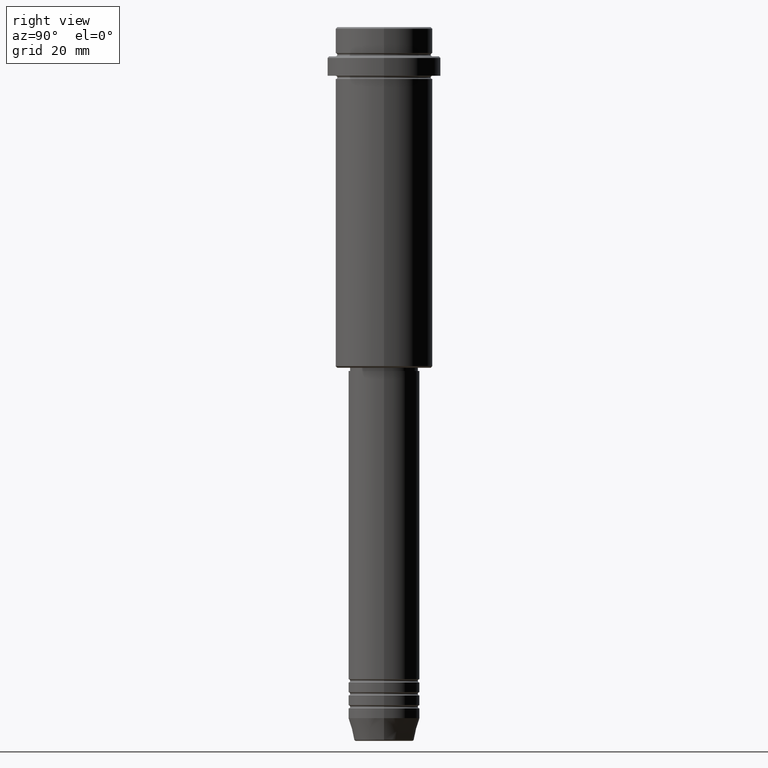
[diagram: clean part render]
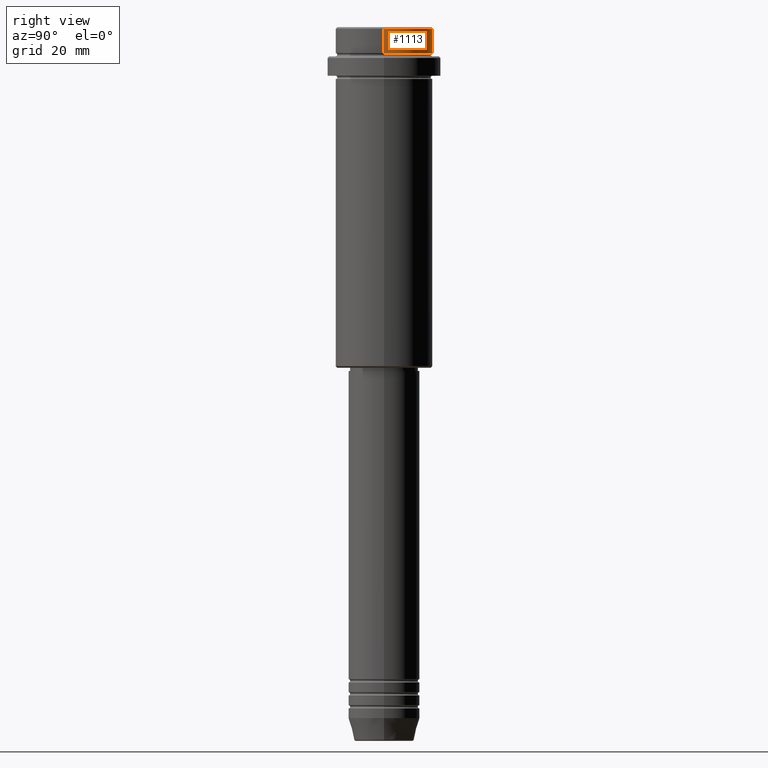
[diagram: same view with one face highlighted and labeled with its STEP entity id]
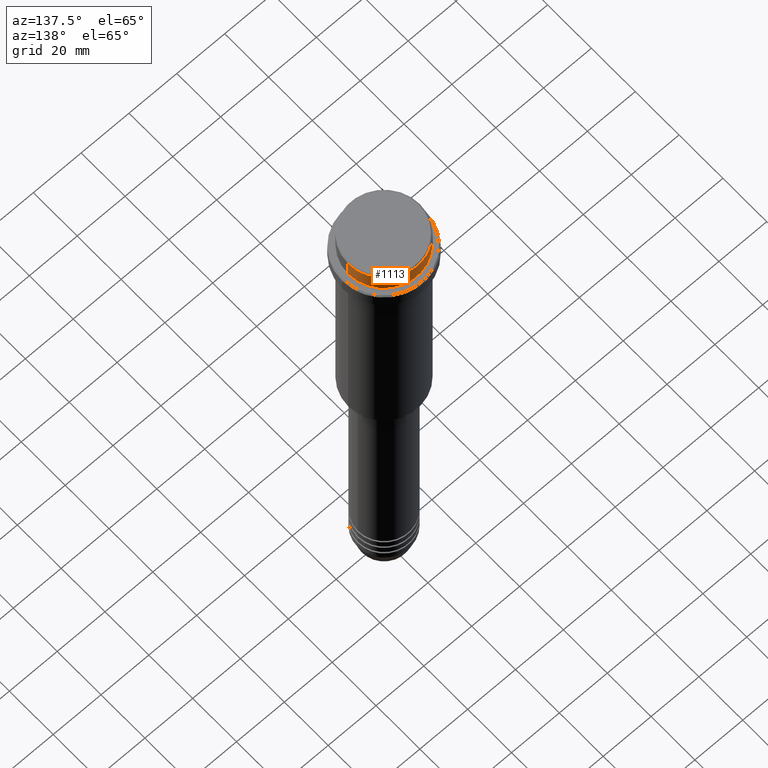
[diagram: same view with one face highlighted and labeled with its STEP entity id]
A machine part, right view. The second image highlights one B-rep face of the part: STEP entity #1113.
A second angle (auxiliary view) of the same face is appended — the face is thin or edge-on in the first view.
In plain terms, the highlighted cylindrical surface (partial cylindrical patch) has radius 15 mm, axis along (-0, -0, 1).
Its self-contained STEP definition (entity closure, byte-faithful):
#23 = DIRECTION ( 'NONE',  ( 1.000000000000000000, 0.000000000000000000, 0.000000000000000000 ) ) ;
#49 = DIRECTION ( 'NONE',  ( -0.000000000000000000, -0.000000000000000000, 1.000000000000000000 ) ) ;
#55 = DIRECTION ( 'NONE',  ( -0.000000000000000000, -0.000000000000000000, 1.000000000000000000 ) ) ;
#66 = DIRECTION ( 'NONE',  ( 0.000000000000000000, 0.000000000000000000, -1.000000000000000000 ) ) ;
#144 = EDGE_LOOP ( 'NONE', ( #314, #1349, #1220, #1000 ) ) ;
#157 = CARTESIAN_POINT ( 'NONE',  ( 0.000000000000000000, 0.000000000000000000, -0.5000000000000108802 ) ) ;
#181 = EDGE_CURVE ( 'NONE', #500, #815, #492, .T. ) ;
#197 = EDGE_CURVE ( 'NONE', #815, #678, #1015, .T. ) ;
#234 = VECTOR ( 'NONE', #805, 1000.000000000000000 ) ;
#264 = CARTESIAN_POINT ( 'NONE',  ( 0.000000000000000000, 0.000000000000000000, 0.000000000000000000 ) ) ;
#285 = EDGE_CURVE ( 'NONE', #702, #678, #1025, .T. ) ;
#300 = CARTESIAN_POINT ( 'NONE',  ( -15.00000000000000000, 1.836970198721029589E-15, -0.5000000000000108802 ) ) ;
#314 = ORIENTED_EDGE ( 'NONE', *, *, #1060, .T. ) ;
#348 = VECTOR ( 'NONE', #49, 1000.000000000000000 ) ;
#482 = FACE_OUTER_BOUND ( 'NONE', #144, .T. ) ;
#492 = LINE ( 'NONE', #1343, #234 ) ;
#498 = CARTESIAN_POINT ( 'NONE',  ( 15.00000000000000000, 0.000000000000000000, 0.000000000000000000 ) ) ;
#500 = VERTEX_POINT ( 'NONE', #1410 ) ;
#575 = DIRECTION ( 'NONE',  ( -0.000000000000000000, -0.000000000000000000, 1.000000000000000000 ) ) ;
#592 = CARTESIAN_POINT ( 'NONE',  ( 15.00000000000000000, 0.000000000000000000, -7.999999999999998224 ) ) ;
#678 = VERTEX_POINT ( 'NONE', #716 ) ;
#702 = VERTEX_POINT ( 'NONE', #592 ) ;
#716 = CARTESIAN_POINT ( 'NONE',  ( 15.00000000000000000, 0.000000000000000000, -0.5000000000000108802 ) ) ;
#725 = DIRECTION ( 'NONE',  ( 1.000000000000000000, 0.000000000000000000, 0.000000000000000000 ) ) ;
#794 = CYLINDRICAL_SURFACE ( 'NONE', #809, 15.00000000000000000 ) ;
#805 = DIRECTION ( 'NONE',  ( -0.000000000000000000, -0.000000000000000000, 1.000000000000000000 ) ) ;
#809 = AXIS2_PLACEMENT_3D ( 'NONE', #264, #55, #1028 ) ;
#815 = VERTEX_POINT ( 'NONE', #300 ) ;
#900 = AXIS2_PLACEMENT_3D ( 'NONE', #1109, #575, #23 ) ;
#1000 = ORIENTED_EDGE ( 'NONE', *, *, #285, .F. ) ;
#1015 = CIRCLE ( 'NONE', #1278, 15.00000000000000000 ) ;
#1025 = LINE ( 'NONE', #498, #348 ) ;
#1028 = DIRECTION ( 'NONE',  ( 1.000000000000000000, 0.000000000000000000, 0.000000000000000000 ) ) ;
#1060 = EDGE_CURVE ( 'NONE', #702, #500, #1097, .T. ) ;
#1097 = CIRCLE ( 'NONE', #900, 15.00000000000000000 ) ;
#1109 = CARTESIAN_POINT ( 'NONE',  ( 0.000000000000000000, 0.000000000000000000, -7.999999999999998224 ) ) ;
#1113 = ADVANCED_FACE ( 'NONE', ( #482 ), #794, .T. ) ;
#1220 = ORIENTED_EDGE ( 'NONE', *, *, #197, .T. ) ;
#1278 = AXIS2_PLACEMENT_3D ( 'NONE', #157, #66, #725 ) ;
#1343 = CARTESIAN_POINT ( 'NONE',  ( -15.00000000000000000, 1.836970198721029589E-15, 0.000000000000000000 ) ) ;
#1349 = ORIENTED_EDGE ( 'NONE', *, *, #181, .T. ) ;
#1410 = CARTESIAN_POINT ( 'NONE',  ( -15.00000000000000000, 1.836970198721029589E-15, -7.999999999999998224 ) ) ;